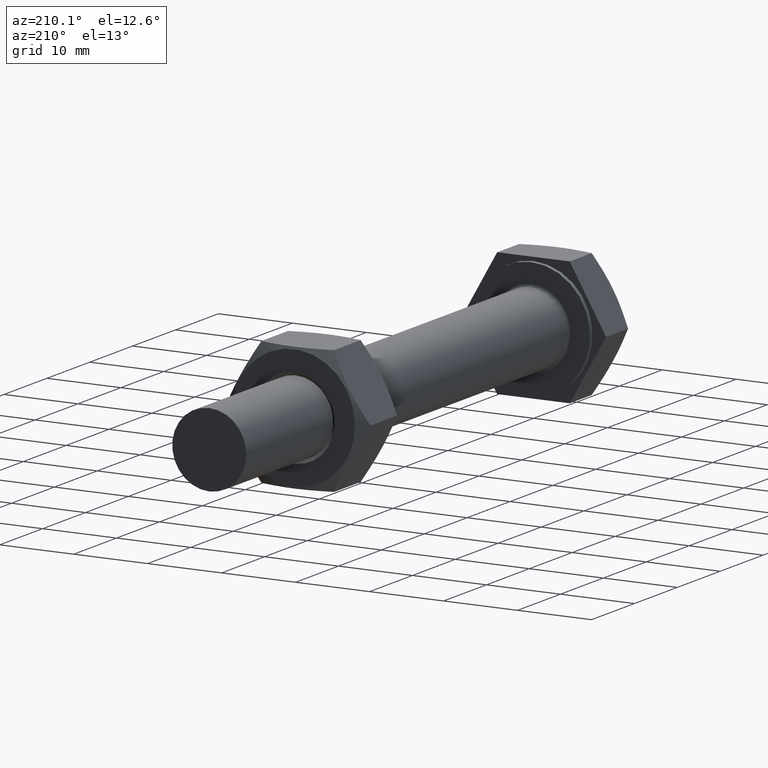
[diagram: clean part render]
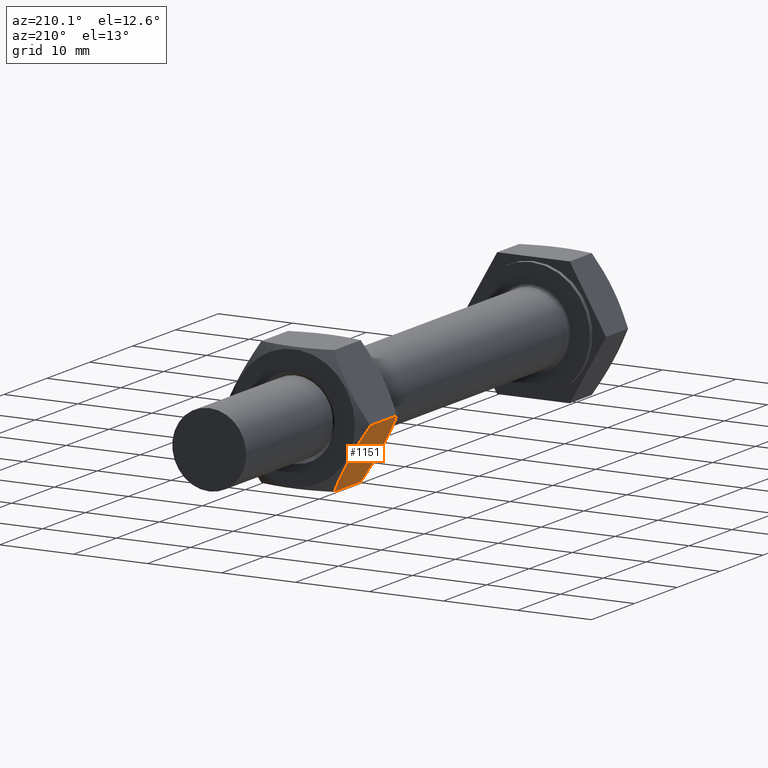
[diagram: same view with one face highlighted and labeled with its STEP entity id]
A machine part, auxiliary view. The second image highlights one B-rep face of the part: STEP entity #1151.
In plain terms, the highlighted planar face has unit normal (0.866, 0, 0.5).
Its self-contained STEP definition (entity closure, byte-faithful):
#35 = CARTESIAN_POINT ( 'NONE',  ( -2.459013933925421100, 7.717601248757955700, -8.395242219530759400 ) ) ;
#60 = CARTESIAN_POINT ( 'NONE',  ( -1.392947987592038700, 0.4815668988387851700, -9.010735680620229000 ) ) ;
#63 = VERTEX_POINT ( 'NONE', #211 ) ;
#86 = VERTEX_POINT ( 'NONE', #107 ) ;
#107 = CARTESIAN_POINT ( 'NONE',  ( -1.766839479166227100E-015, 0.9035269458522785500, -9.814954576223639600 ) ) ;
#130 = ORIENTED_EDGE ( 'NONE', *, *, #697, .T. ) ;
#142 = CARTESIAN_POINT ( 'NONE',  ( -3.533766233373303800, 7.838179938350025500, -7.774733690132355200 ) ) ;
#151 = CARTESIAN_POINT ( 'NONE',  ( -4.603206338307826300, 0.1440748050265416600, -7.157292157666227600 ) ) ;
#211 = CARTESIAN_POINT ( 'NONE',  ( -8.500000000000000000, 7.096473054147784500, -4.907477288111823400 ) ) ;
#233 = VERTEX_POINT ( 'NONE', #1320 ) ;
#247 = CARTESIAN_POINT ( 'NONE',  ( -8.500000000000000000, 0.9035269458522480200, -4.907477288111823400 ) ) ;
#259 = CARTESIAN_POINT ( 'NONE',  ( -4.980775780429266500, 7.855127948882510800, -6.939302338619633300 ) ) ;
#307 = ORIENTED_EDGE ( 'NONE', *, *, #325, .F. ) ;
#314 = AXIS2_PLACEMENT_3D ( 'NONE', #760, #327, #1073 ) ;
#325 = EDGE_CURVE ( 'NONE', #63, #233, #738, .T. ) ;
#327 = DIRECTION ( 'NONE',  ( 0.4999999999999998300, -0.0000000000000000000, 0.8660254037844388200 ) ) ;
#328 = CARTESIAN_POINT ( 'NONE',  ( -7.104573684930404200, 0.4808067499786792300, -5.713127046751539600 ) ) ;
#423 = DIRECTION ( 'NONE',  ( -0.0000000000000000000, -1.000000000000000000, -0.0000000000000000000 ) ) ;
#425 = CARTESIAN_POINT ( 'NONE',  ( -1.761172502453001400E-015, 7.096473054147802300, -9.814954576223639600 ) ) ;
#439 = CARTESIAN_POINT ( 'NONE',  ( -1.766839479166227100E-015, 0.9035269458522785500, -9.814954576223639600 ) ) ;
#474 = B_SPLINE_CURVE_WITH_KNOTS ( 'NONE', 3,
 ( #439, #1078, #60, #908, #1337, #151, #1138, #887, #1265, #328, #733, #247 ),
 .UNSPECIFIED., .F., .F.,
 ( 4, 2, 2, 2, 2, 4 ),
 ( 2.380731279449985300E-007, 0.002478378544578534400, 0.004956519016029123700, 0.006195589251754416400, 0.007434659487479710000, 0.009912799958930296200 ),
 .UNSPECIFIED. ) ;
#477 = CARTESIAN_POINT ( 'NONE',  ( -5.694466222007606300, 7.782538757568554300, -6.527252970056321300 ) ) ;
#693 = CARTESIAN_POINT ( 'NONE',  ( -1.761172502453001400E-015, 7.096473054147802300, -9.814954576223639600 ) ) ;
#697 = EDGE_CURVE ( 'NONE', #63, #1099, #769, .T. ) ;
#733 = CARTESIAN_POINT ( 'NONE',  ( -7.805190717491845100, 0.6719238516826409000, -5.308625614403357700 ) ) ;
#738 = LINE ( 'NONE', #1070, #1269 ) ;
#760 = CARTESIAN_POINT ( 'NONE',  ( -1.732661559390243400E-015, 8.000000000000000000, -9.814954576223639600 ) ) ;
#769 = B_SPLINE_CURVE_WITH_KNOTS ( 'NONE', 3,
 ( #910, #1115, #1111, #477, #259, #1000, #142, #905, #35, #795, #1328, #693 ),
 .UNSPECIFIED., .F., .F.,
 ( 4, 2, 2, 2, 2, 4 ),
 ( 2.380731279446781900E-007, 0.002478378544578529200, 0.004956519016029113300, 0.006195589251754405100, 0.007434659487479698700, 0.009912799958930289300 ),
 .UNSPECIFIED. ) ;
#795 = CARTESIAN_POINT ( 'NONE',  ( -1.395426315069598000, 7.519193250021348100, -9.009304817583922500 ) ) ;
#887 = CARTESIAN_POINT ( 'NONE',  ( -5.684340329490466600, 0.2310171451797796700, -6.533099156826877700 ) ) ;
#905 = CARTESIAN_POINT ( 'NONE',  ( -2.815659670509536900, 7.768982854820236200, -8.189332707508588900 ) ) ;
#908 = CARTESIAN_POINT ( 'NONE',  ( -2.805533777992393200, 0.2174612424314634800, -8.195178894279145300 ) ) ;
#910 = CARTESIAN_POINT ( 'NONE',  ( -8.500000000000000000, 7.096473054147784500, -4.907477288111823400 ) ) ;
#923 = EDGE_LOOP ( 'NONE', ( #1127, #943, #307, #130 ) ) ;
#943 = ORIENTED_EDGE ( 'NONE', *, *, #962, .T. ) ;
#962 = EDGE_CURVE ( 'NONE', #86, #233, #474, .T. ) ;
#964 = EDGE_CURVE ( 'NONE', #1099, #86, #1155, .T. ) ;
#990 = VECTOR ( 'NONE', #1154, 1000.000000000000000 ) ;
#1000 = CARTESIAN_POINT ( 'NONE',  ( -3.896793661692173200, 7.855925194973467600, -7.565139706669237200 ) ) ;
#1043 = CARTESIAN_POINT ( 'NONE',  ( -1.732661559390243400E-015, 8.000000000000000000, -9.814954576223639600 ) ) ;
#1070 = CARTESIAN_POINT ( 'NONE',  ( -8.500000000000000000, 8.000000000000000000, -4.907477288111823400 ) ) ;
#1073 = DIRECTION ( 'NONE',  ( 0.8660254037844387100, 0.0000000000000000000, -0.4999999999999997800 ) ) ;
#1078 = CARTESIAN_POINT ( 'NONE',  ( -0.6939442610478265800, 0.6722121921692338900, -9.414305670305081400 ) ) ;
#1099 = VERTEX_POINT ( 'NONE', #425 ) ;
#1111 = CARTESIAN_POINT ( 'NONE',  ( -7.107052012407961300, 7.518433101161250900, -5.711696183715234900 ) ) ;
#1115 = CARTESIAN_POINT ( 'NONE',  ( -7.806055738952173900, 7.327787807830816300, -5.308126194030382500 ) ) ;
#1127 = ORIENTED_EDGE ( 'NONE', *, *, #964, .T. ) ;
#1138 = CARTESIAN_POINT ( 'NONE',  ( -4.966233766626699800, 0.1618200616499894100, -6.947698174203110500 ) ) ;
#1151 = ADVANCED_FACE ( 'NONE', ( #1394 ), #1291, .F. ) ;
#1154 = DIRECTION ( 'NONE',  ( -0.0000000000000000000, -1.000000000000000000, -0.0000000000000000000 ) ) ;
#1155 = LINE ( 'NONE', #1043, #990 ) ;
#1265 = CARTESIAN_POINT ( 'NONE',  ( -6.040986066074579800, 0.2823987512420597600, -6.327189644804703600 ) ) ;
#1269 = VECTOR ( 'NONE', #423, 1000.000000000000000 ) ;
#1291 = PLANE ( 'NONE',  #314 ) ;
#1320 = CARTESIAN_POINT ( 'NONE',  ( -8.500000000000000000, 0.9035269458522480200, -4.907477288111823400 ) ) ;
#1328 = CARTESIAN_POINT ( 'NONE',  ( -0.6948092825081568800, 7.328076148317396000, -9.413806249932106200 ) ) ;
#1337 = CARTESIAN_POINT ( 'NONE',  ( -3.519224219570730000, 0.1448720511175012600, -7.783129525715829700 ) ) ;
#1394 = FACE_OUTER_BOUND ( 'NONE', #923, .T. ) ;